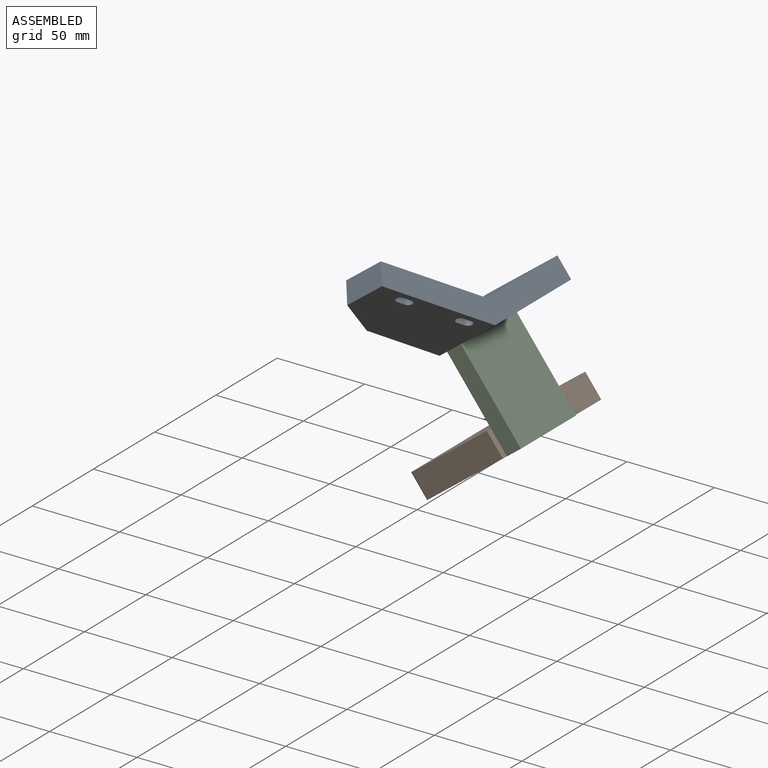
[diagram: assembled view]
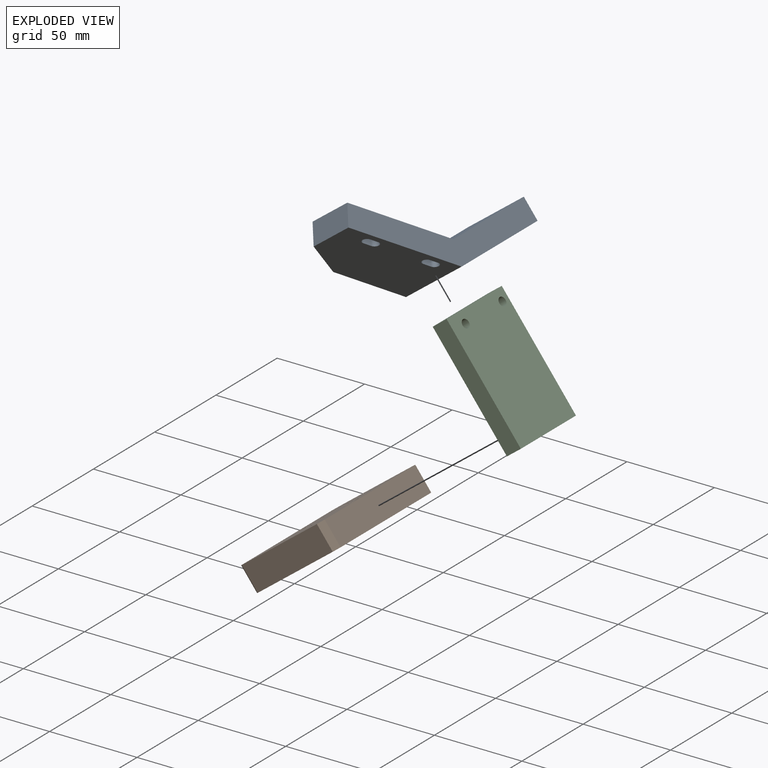
[diagram: exploded view]
GUIDED TOUR — MATED ASSEMBLY (Onshape document 4249bea556302f388c0cea33, AutoMate assembly 4249bea556302f388c0cea33_2f684956357b3dd7d94f09f2_67432728721c07ad170bae7a_default)

This assembly has 3 components, labeled P0..P2 below (a component is one placed occurrence of a part; the same part can appear more than once), held together by 6 mates. A mate is a constraint between two components; its type names the relative motion it leaves free:
  PLANAR — leaves sliding in the plane through the listed point (normal = the listed direction) and rotation about that normal free.
Axis/direction vectors are unit vectors and 'through' points are millimeter coordinates, both in the assembly's world frame.

MATES
  1. PLANAR "Planar 2": P2 <-> P0, direction (-0.606, 0.000, 0.795) through (-97.74, -5.00, -7.05) mm
  2. PLANAR "Planar 1": P2 <-> P0, direction (0.795, 0.000, 0.606) through (-72.33, -5.04, -32.14) mm
  3. PLANAR "Planar 3": P2 <-> P0, direction (0.000, 1.000, 0.000) through (-76.53, 17.50, -34.89) mm
  4. PLANAR "Planar 4": P1 <-> P2, direction (0.795, 0.000, 0.606) through (-63.83, 12.50, -59.79) mm
  5. PLANAR "Planar 8": P2 <-> P1, direction (0.606, 0.000, -0.795) through (-55.31, -5.00, -62.73) mm
  6. PLANAR "Planar 5": P1 <-> P2, direction (0.000, -1.000, 0.000) through (-87.69, -27.50, -77.98) mm

ASSEMBLY ORDER
  1. P2 — the base component [order verified]
  2. P1 [order verified]
  3. P0 [order verified]
Order-tag legend:
  [order verified] — this step's position reverses a verified removal order: the component was checked to insert without passing through the ones already placed.

Of the 3 components, 2 carry the full construction recipe — the FeatureScript program that regenerates the part's solid from scratch; the rest are supplied as boundary geometry only.
Each toured component is shown spotlighted twice — in the assembled view, then in the exploded view, where a leader line traces a displaced component back to its assembled socket (saturated green if recipe-attached, orange if geometry-only; every other component desaturated gray) — followed by its recipe or geometry summary and the mates that hold it.
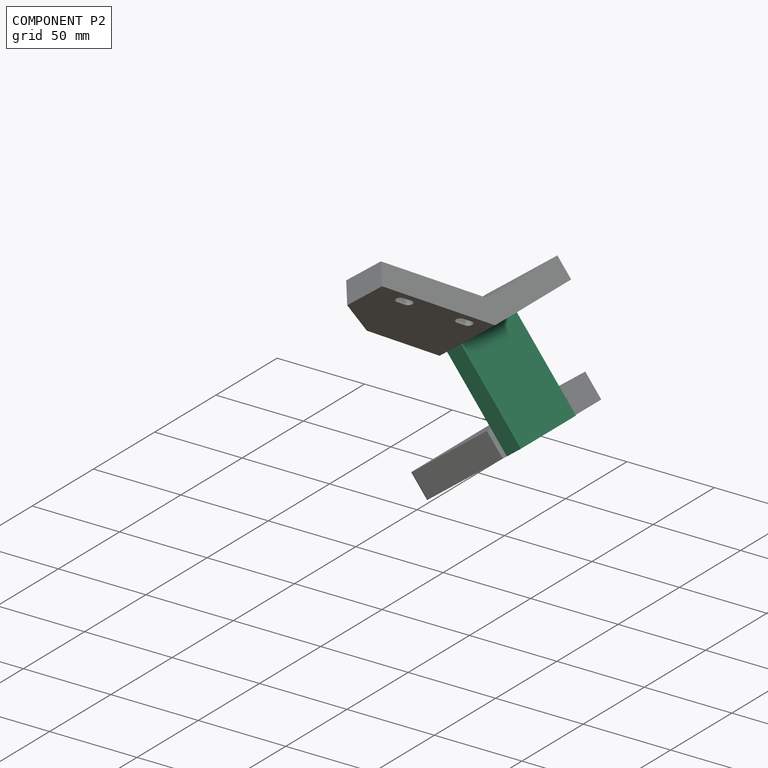
[diagram: component P2 — assembled]
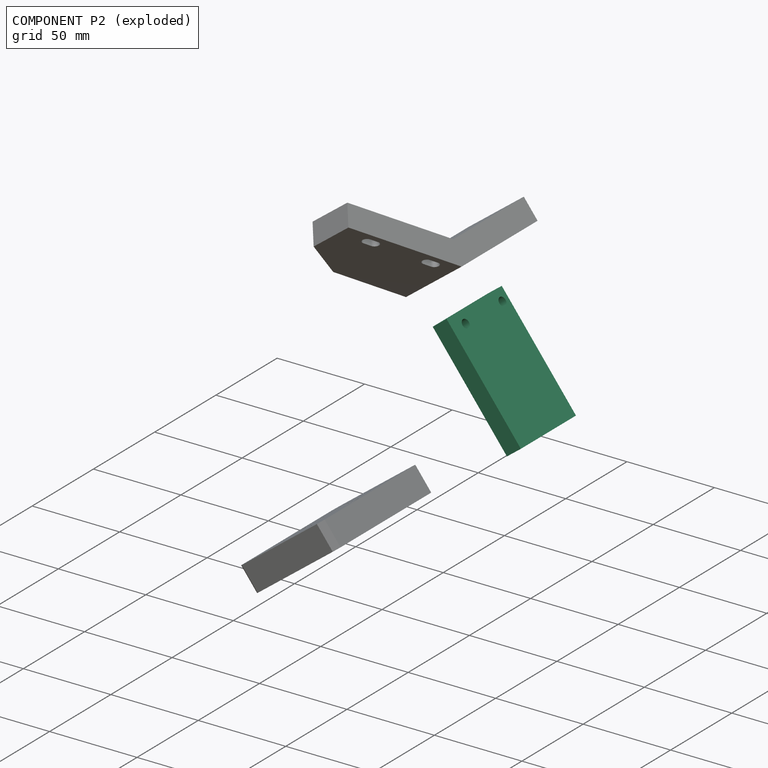
[diagram: component P2 — exploded]
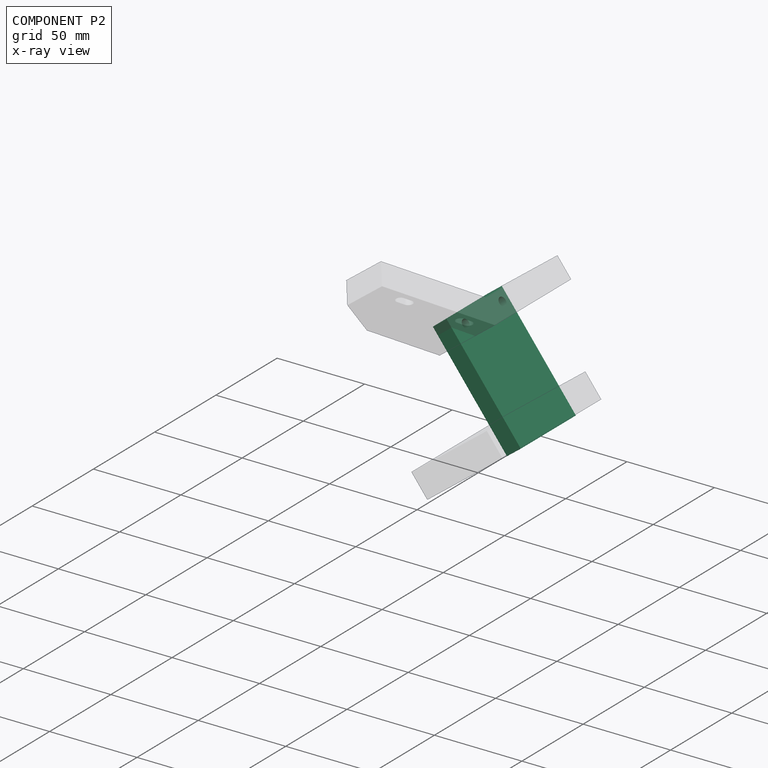
[diagram: component P2 — x-ray view]
COMPONENT P2 — recipe-attached (CADFS 00847461, mesh-verified: the recipe's output STEP matches this component's geometry to below the mesh-comparison resolution (tessellation chordal tolerance ~0.126 mm)).
Held by: PLANAR mate "Planar 2" to P0; PLANAR mate "Planar 1" to P0; PLANAR mate "Planar 3" to P0; PLANAR mate "Planar 4" to P1; PLANAR mate "Planar 8" to P1; PLANAR mate "Planar 5" to P1.
Construction recipe (FeatureScript — the CAD program that rebuilds this solid; sketch coordinates are in the units given by the * unit suffixes, e.g. mm):

FeatureScript 1511;
import(path : "onshape/std/geometry.fs", version : "1511.0");
import(path : "onshape/std/common.fs", version : "1511.0");
const mm = millimeter;
const VERTEX = EntityType.VERTEX;
const EDGE = EntityType.EDGE;
const FACE = EntityType.FACE;
const BODY = EntityType.BODY;
function v(x, y){return vector(x, y);}
function OD(order){return orderDisambiguation(order);}
function OSD(set){return originalSetDisambiguation(set);}
function TD(topology){return topologyDisambiguation(topology);}
function TDD(query){return trueDependencyDisambiguation(query);}
function sQuery(a, b, c) {return sketchEntityQuery(a, b, c);}

annotation { "Feature Type Name" : "Feature", "Feature Type Description" : "" }
export const myFeature = defineFeature(function(context is Context, id is Id, definition is map)
    precondition{}
    {
        {
            var Q0;
            Q0=qCreatedBy(makeId("Front.planeOp"),FACE);
            var sketch = newSketch(context, id + "F0", { "sketchPlane" : qUnion([Q0])});
            skLineSegment(sketch, "E0.bottom", {"start": v(-29.6, 19.75) * mm, "end": v(40.4, 19.75) * mm});
            skLineSegment(sketch, "E0.top", {"start": v(-29.6, -25.25) * mm, "end": v(40.4, -25.25) * mm});
            skLineSegment(sketch, "E0.left", {"start": v(-29.6, 19.75) * mm, "end": v(-29.6, -25.25) * mm});
            skLineSegment(sketch, "E0.right", {"start": v(40.4, 19.75) * mm, "end": v(40.4, -25.25) * mm});
            skSolve(sketch);
        }
        {
            var Q0;
            Q0 = qSketchRegion(id + "F0", true);
            extrude(context, id + "F1", {"entities" : qUnion([Q0]), "depth" : 10 * mm, "offsetDistance" : 25 * mm});
        }
        {
            var Q0;
            Q0=makeQuery(id+"F1.opExtrude","CAP_FACE",FACE,{"disambiguationData":[OSD([sQuery(id+"F0.wireOp",EDGE,"E0.bottom"),sQuery(id+"F0.wireOp",EDGE,"E0.top"),sQuery(id+"F0.wireOp",EDGE,"E0.left"),sQuery(id+"F0.wireOp",EDGE,"E0.right")])],"isStart":false});
            var sketch = newSketch(context, id + "F2", { "sketchPlane" : qUnion([Q0])});
            skCircle(sketch, "E1", {"center": v(33.9, 9.75) * mm, "radius": 2.5 * mm});
            skCircle(sketch, "E2", {"center": v(33.9, -20.25) * mm, "radius": 2.5 * mm});
            skSolve(sketch);
        }
        {
            var Q0;
            Q0 = qSketchRegion(id + "F2", true);
            extrude(context, id + "F3", {"entities" : qUnion([Q0]), "operationType" : NewBodyOperationType.REMOVE, "oppositeDirection" : true, "depth" : 25 * mm, "offsetDistance" : 25 * mm});
        }
    });
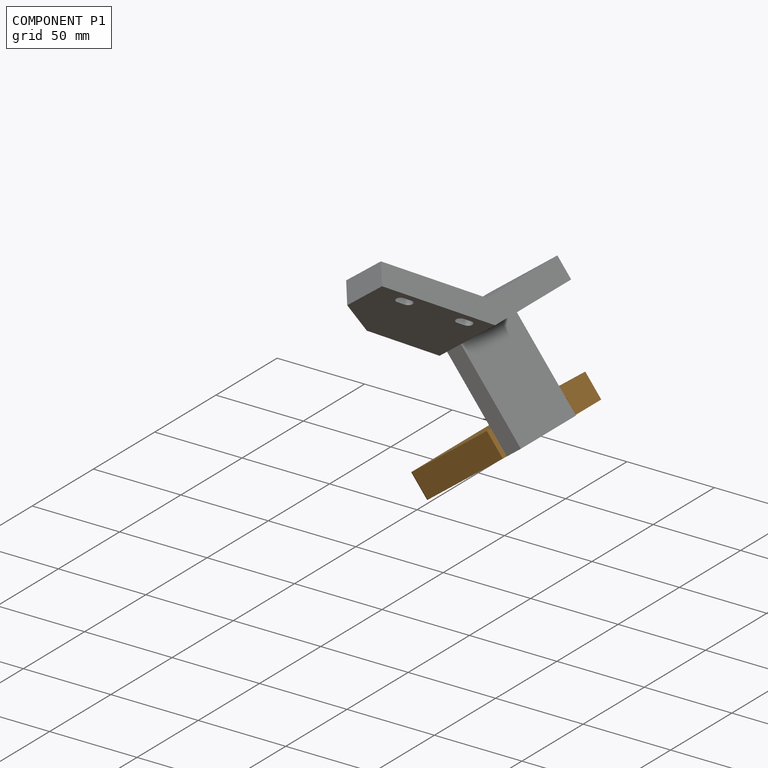
[diagram: component P1 — assembled]
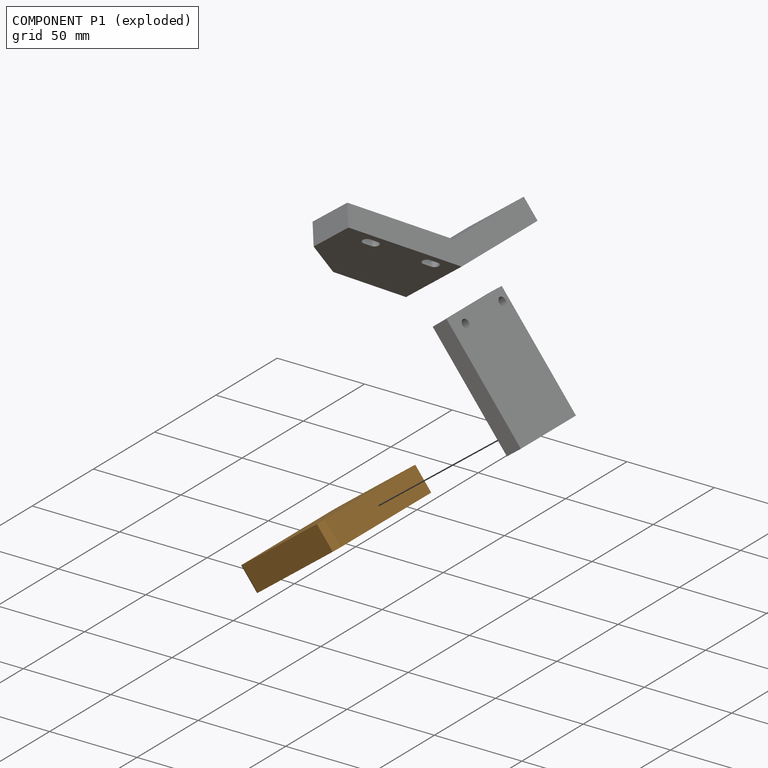
[diagram: component P1 — exploded]
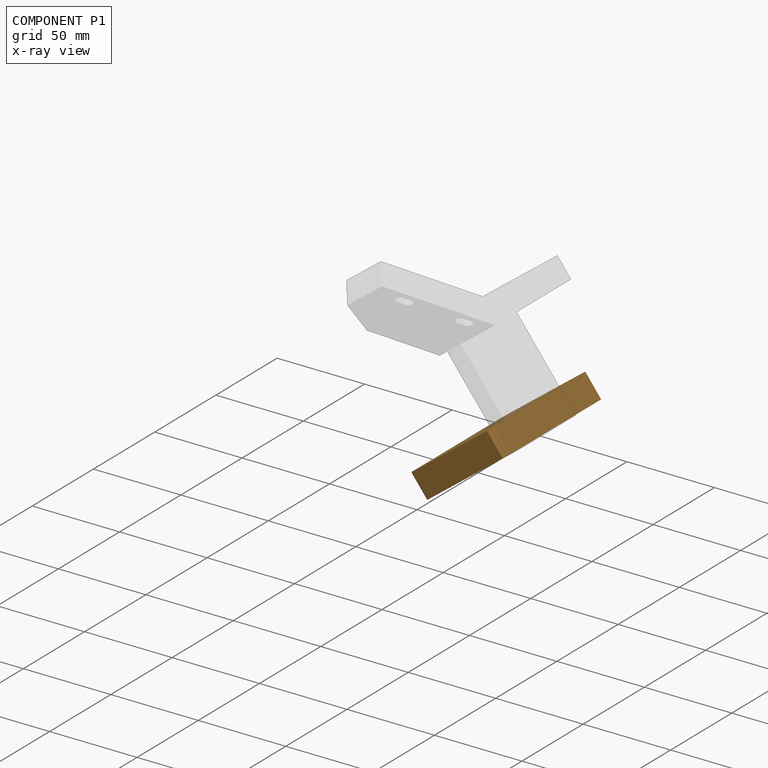
[diagram: component P1 — x-ray view]
COMPONENT P1 — geometry summary (no construction recipe available for this part):
  bounding box: 80.0 x 60.0 x 15.0 mm
  B-rep topology: 1 solid, 16 faces, 84 edges
  volume: 69704 mm^3 (97% of its bounding box)
  symmetry: 2-fold rotationally symmetric about the z axis; mirror-symmetric across its x mid-plane, y mid-plane
Held by: PLANAR mate "Planar 4" to P2; PLANAR mate "Planar 8" to P2; PLANAR mate "Planar 5" to P2.
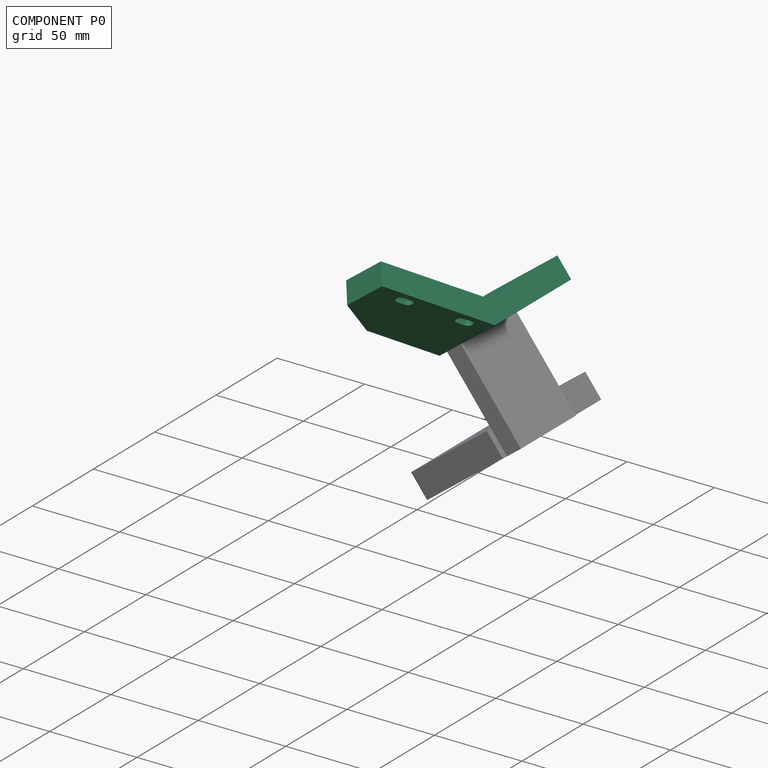
[diagram: component P0 — assembled]
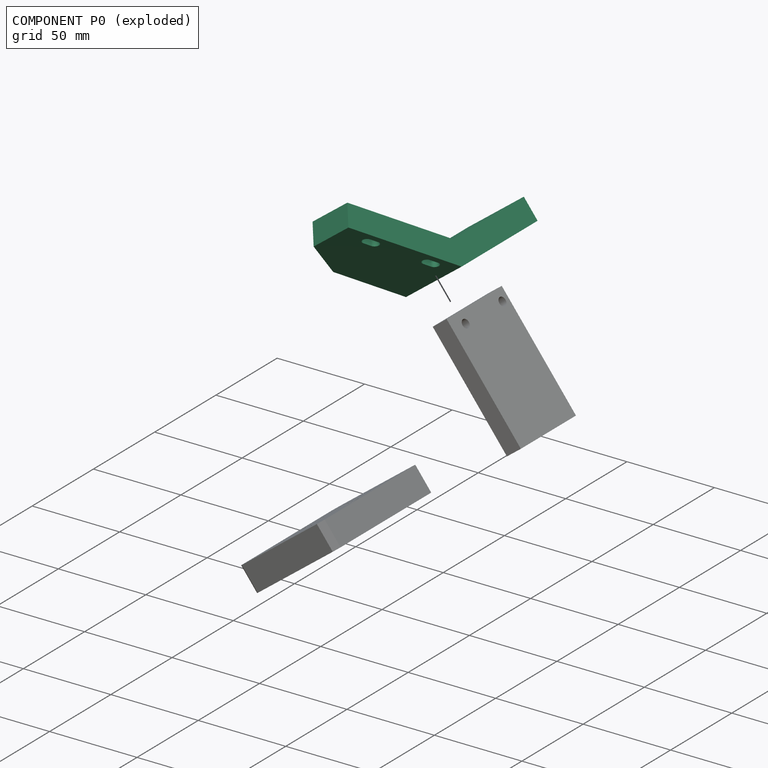
[diagram: component P0 — exploded]
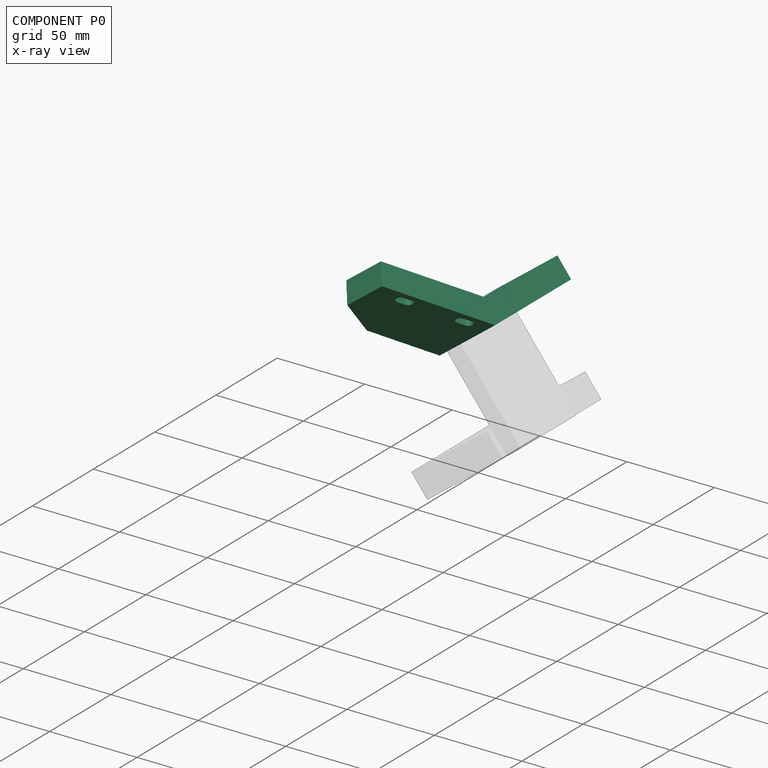
[diagram: component P0 — x-ray view]
COMPONENT P0 — recipe-attached (CADFS 00846913, mesh-verified: the recipe's output STEP matches this component's geometry to below the mesh-comparison resolution (tessellation chordal tolerance ~0.202 mm)).
Held by: PLANAR mate "Planar 2" to P2; PLANAR mate "Planar 1" to P2; PLANAR mate "Planar 3" to P2.
Construction recipe (FeatureScript — the CAD program that rebuilds this solid; sketch coordinates are in the units given by the * unit suffixes, e.g. mm):

FeatureScript 1511;
import(path : "onshape/std/geometry.fs", version : "1511.0");
import(path : "onshape/std/common.fs", version : "1511.0");
const mm = millimeter;
const VERTEX = EntityType.VERTEX;
const EDGE = EntityType.EDGE;
const FACE = EntityType.FACE;
const BODY = EntityType.BODY;
function v(x, y){return vector(x, y);}
function OD(order){return orderDisambiguation(order);}
function OSD(set){return originalSetDisambiguation(set);}
function TD(topology){return topologyDisambiguation(topology);}
function TDD(query){return trueDependencyDisambiguation(query);}
function sQuery(a, b, c) {return sketchEntityQuery(a, b, c);}

annotation { "Feature Type Name" : "Feature", "Feature Type Description" : "" }
export const myFeature = defineFeature(function(context is Context, id is Id, definition is map)
    precondition{}
    {
        {
            var Q0;
            Q0=qCreatedBy(makeId("Front.planeOp"),FACE);
            var sketch = newSketch(context, id + "F0", { "sketchPlane" : qUnion([Q0])});
            skLineSegment(sketch, "E0", {"start": v(-70, 0) * mm, "end": v(0, 0) * mm});
            skLineSegment(sketch, "E1", {"start": v(0, 0) * mm, "end": v(48.86, 38.17) * mm});
            skPoint(sketch, "E2.start.orphan", {"position": v(44.27, 0) * mm});
            skLineSegment(sketch, "E3", {"start": v(-70, 0) * mm, "end": v(-70, 13) * mm});
            skLineSegment(sketch, "E4", {"start": v(-70, 13) * mm, "end": v(-4.48, 13) * mm});
            skLineSegment(sketch, "E5", {"start": v(48.86, 38.17) * mm, "end": v(40.85, 48.42) * mm});
            skLineSegment(sketch, "E6", {"start": v(40.85, 48.42) * mm, "end": v(-4.48, 13) * mm});
            skSolve(sketch);
        }
        {
            var Q0;
            Q0 = qSketchRegion(id + "F0", true);
            extrude(context, id + "F1", {"entities" : qUnion([Q0]), "depth" : 40 * mm, "offsetDistance" : 25 * mm});
        }
        {
            var Q0;
            Q0=makeQuery(id+"F1.opExtrude","SWEPT_FACE",FACE,{"disambiguationData":[OSD([sQuery(id+"F0.wireOp",EDGE,"E4")])]});
            var sketch = newSketch(context, id + "F2", { "sketchPlane" : qUnion([Q0])});
            skArc(sketch, "E7", {"start": v(-11.5, -38.5) * mm, "mid": v(-7, -34) * mm, "end": v(-11.5, -29.5) * mm});
            skArc(sketch, "E8", {"start": v(-53.5, -29.5) * mm, "mid": v(-58, -34) * mm, "end": v(-53.5, -38.5) * mm});
            skArc(sketch, "E9", {"start": v(-16.5, -29.5) * mm, "mid": v(-21, -34) * mm, "end": v(-16.5, -38.5) * mm});
            skArc(sketch, "E10", {"start": v(-48.5, -38.5) * mm, "mid": v(-44, -34) * mm, "end": v(-48.5, -29.5) * mm});
            skLineSegment(sketch, "E11", {"start": v(-11.5, -29.5) * mm, "end": v(-16.5, -29.5) * mm});
            skLineSegment(sketch, "E12", {"start": v(-16.5, -38.5) * mm, "end": v(-11.5, -38.5) * mm});
            skLineSegment(sketch, "E13", {"start": v(-53.5, -29.5) * mm, "end": v(-48.5, -29.5) * mm});
            skLineSegment(sketch, "E14", {"start": v(-48.5, -38.5) * mm, "end": v(-53.5, -38.5) * mm});
            skLineSegment(sketch, "E15", {"start": v(-53.5, -38.5) * mm, "end": v(-48.5, -38.5) * mm});
            skSolve(sketch);
        }
        {
            var Q0;
            Q0=makeQuery(id+"F2.imprint","IMPRINT",FACE,{"disambiguationData":[TD([[makeQuery(id+"F2.imprint","IMPRINT",EDGE,{"derivedFrom":sQuery(id+"F2.wireOp",EDGE,"E7")}),1.0]])]});
            var Q1;
            Q1=makeQuery(id+"F2.imprint","IMPRINT",FACE,{"disambiguationData":[TD([[makeQuery(id+"F2.imprint","IMPRINT",EDGE,{"derivedFrom":sQuery(id+"F2.wireOp",EDGE,"E8")}),1.0]])]});
            extrude(context, id + "F3", {"entities" : qUnion([Q0, Q1]), "operationType" : NewBodyOperationType.REMOVE, "oppositeDirection" : true, "depth" : 5 * mm, "offsetDistance" : 25 * mm});
        }
        {
            var Q0;
            Q0=makeQuery(id+"F1.opExtrude","SWEPT_FACE",FACE,{"disambiguationData":[OSD([sQuery(id+"F0.wireOp",EDGE,"E4")])]});
            var sketch = newSketch(context, id + "F4", { "sketchPlane" : qUnion([Q0])});
            skArc(sketch, "E16", {"start": v(-48.5, -36.5) * mm, "mid": v(-46, -34) * mm, "end": v(-48.5, -31.5) * mm});
            skArc(sketch, "E17", {"start": v(-53.5, -31.5) * mm, "mid": v(-56, -34) * mm, "end": v(-53.5, -36.5) * mm});
            skArc(sketch, "E18", {"start": v(-16.5, -31.5) * mm, "mid": v(-19, -34) * mm, "end": v(-16.5, -36.5) * mm});
            skArc(sketch, "E19", {"start": v(-11.5, -36.5) * mm, "mid": v(-9, -34) * mm, "end": v(-11.5, -31.5) * mm});
            skLineSegment(sketch, "E20", {"start": v(-53.5, -31.5) * mm, "end": v(-48.5, -31.5) * mm});
            skLineSegment(sketch, "E21", {"start": v(-48.5, -36.5) * mm, "end": v(-53.5, -36.5) * mm});
            skLineSegment(sketch, "E22", {"start": v(-16.5, -31.5) * mm, "end": v(-11.5, -31.5) * mm});
            skLineSegment(sketch, "E23", {"start": v(-11.5, -36.5) * mm, "end": v(-16.5, -36.5) * mm});
            skSolve(sketch);
        }
        {
            var Q0;
            Q0 = qSketchRegion(id + "F4", true);
            extrude(context, id + "F5", {"entities" : qUnion([Q0]), "operationType" : NewBodyOperationType.REMOVE, "oppositeDirection" : true, "depth" : 25 * mm, "offsetDistance" : 25 * mm});
        }
        {
            var Q0;
            Q0=makeQuery(id+"F1.opExtrude","SWEPT_FACE",FACE,{"disambiguationData":[OSD([sQuery(id+"F0.wireOp",EDGE,"E4")])]});
            var sketch = newSketch(context, id + "F6", { "sketchPlane" : qUnion([Q0])});
            skLineSegment(sketch, "E24", {"start": v(-70, -15) * mm, "end": v(-45, 0) * mm});
            skLineSegment(sketch, "E25", {"start": v(-45, 0) * mm, "end": v(-70, 0) * mm});
            skLineSegment(sketch, "E26", {"start": v(-70, 0) * mm, "end": v(-70, -15) * mm});
            skSolve(sketch);
        }
        {
            var Q0;
            Q0=makeQuery(id+"F6.imprint","IMPRINT",FACE,{"disambiguationData":[TD([[makeQuery(id+"F6.imprint","IMPRINT",EDGE,{"derivedFrom":sQuery(id+"F6.wireOp",EDGE,"E24")}),1.0]])]});
            extrude(context, id + "F7", {"entities" : qUnion([Q0]), "operationType" : NewBodyOperationType.REMOVE, "oppositeDirection" : true, "depth" : 25 * mm, "offsetDistance" : 25 * mm});
        }
        {
            var Q0;
            Q0=makeQuery(id+"F1.opExtrude","CAP_FACE",FACE,{"disambiguationData":[OSD([sQuery(id+"F0.wireOp",EDGE,"E0"),sQuery(id+"F0.wireOp",EDGE,"E1"),sQuery(id+"F0.wireOp",EDGE,"E3"),sQuery(id+"F0.wireOp",EDGE,"E4"),sQuery(id+"F0.wireOp",EDGE,"E5"),sQuery(id+"F0.wireOp",EDGE,"E6")])],"isStart":true});
            var sketch = newSketch(context, id + "F8", { "sketchPlane" : qUnion([Q0])});
            skCircle(sketch, "E27", {"center": v(-36.97, 37.14) * mm, "radius": 2.5 * mm});
            skCircle(sketch, "E28", {"center": v(-13.33, 18.67) * mm, "radius": 2.5 * mm});
            skSolve(sketch);
        }
        {
            var Q0;
            Q0=makeQuery(id+"F8.imprint","IMPRINT",FACE,{"disambiguationData":[TD([[makeQuery(id+"F8.imprint","IMPRINT",EDGE,{"derivedFrom":sQuery(id+"F8.wireOp",EDGE,"E27")}),1.0]])]});
            var Q1;
            Q1=makeQuery(id+"F8.imprint","IMPRINT",FACE,{"disambiguationData":[TD([[makeQuery(id+"F8.imprint","IMPRINT",EDGE,{"derivedFrom":sQuery(id+"F8.wireOp",EDGE,"E28")}),1.0]])]});
            extrude(context, id + "F9", {"entities" : qUnion([Q0, Q1]), "operationType" : NewBodyOperationType.REMOVE, "oppositeDirection" : true, "depth" : 15 * mm, "offsetDistance" : 25 * mm});
        }
    });
PROVENANCE & LICENSES
Assembly (occurrences, transforms, mates, per-part STEP geometry): AutoMate dataset, Zenodo record 7776208, CC0.
Construction recipes: CADFS (HuggingFace VladPyatov/CADFS, CC-BY-4.0, layered over the ABC dataset), FeatureScript reconstruction programs keyed by ABC model id.
Join: ABC meta listings map ABC model id -> Onshape documentId; within a shared document, parts are matched by geometric signature (bounding-box dims + volume at 0.1% relative tolerance, exact B-rep face/solid counts).
Verification: 2 of this assembly's 3 components carry a recipe attachment, and every attachment is mesh-verified: the CADFS STEP and the AutoMate member STEP were compared as meshes in their shared local frame (symmetric sampled-point-to-mesh distance); worst across the 2 attachments: below the mesh-comparison resolution (tessellation chordal tolerance ~0.202 mm) on a 134 mm part.
Renders: orthographic iso camera (az 35 / el 25); the floor grid conveys scale (grid pitch printed in each image; no ruler). In the exploded view each component is displaced by its stored offset vector: the offsets alone carry the explosion direction (mate normal/axis signs are not orientation cues and do not encode it), and separation distances are assigned per mate-chain, not proportionally to assembly-order depth.
